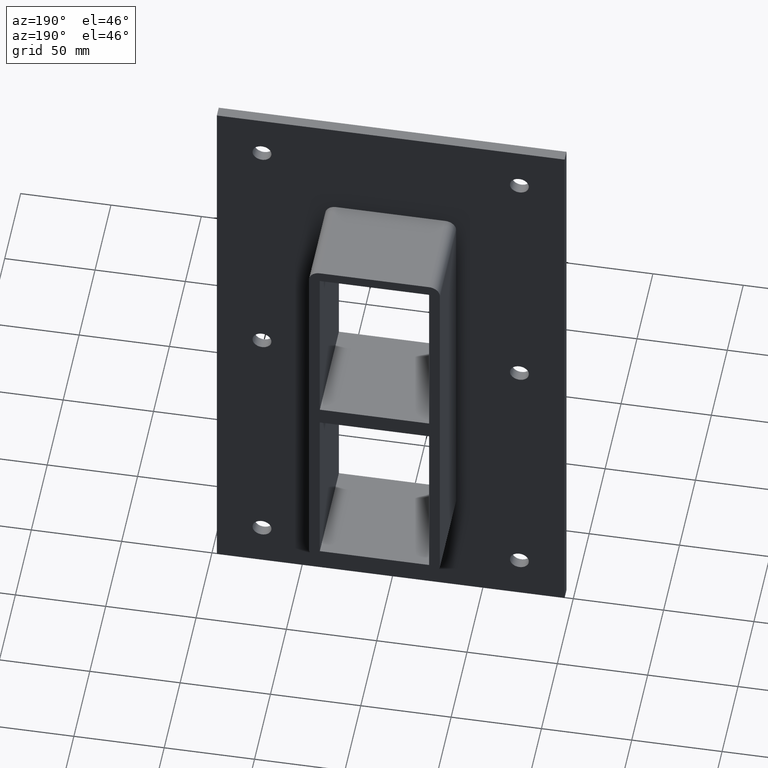
[diagram: clean part render]
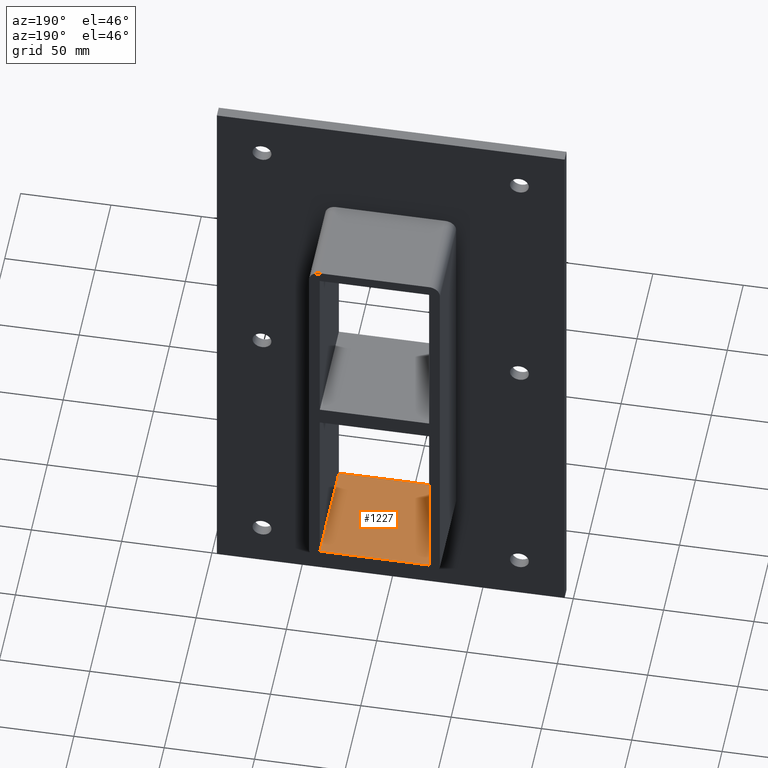
[diagram: same view with one face highlighted and labeled with its STEP entity id]
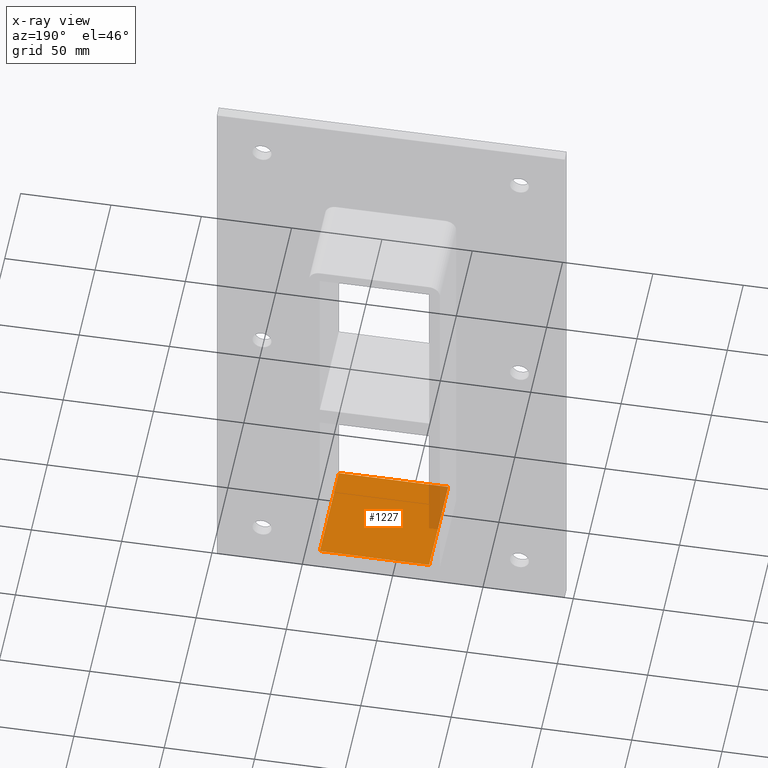
[diagram: x-ray of the same camera — body ghosted, the highlighted face saturated]
A machine part, auxiliary view. The second image highlights one B-rep face of the part: STEP entity #1227.
The next image is the same camera in x-ray: the body ghosted, the highlighted face saturated — about 7% of this face is hidden behind the body in this view.
In plain terms, the highlighted planar face has unit normal (0, 0, -1).
Its self-contained STEP definition (entity closure, byte-faithful):
#353=CARTESIAN_POINT('',(30.249999999999986,57.0,-106.00000000000001));
#354=VERTEX_POINT('',#353);
#361=CARTESIAN_POINT('',(30.249999999999986,-3.0,-106.00000000000001));
#362=VERTEX_POINT('',#361);
#363=CARTESIAN_POINT('',(30.249999999999986,56.999999999999993,-106.00000000000001));
#364=DIRECTION('',(0.0,-1.0,0.0));
#365=VECTOR('',#364,59.999999999999993);
#366=LINE('',#363,#365);
#367=EDGE_CURVE('',#354,#362,#366,.T.);
#739=CARTESIAN_POINT('',(-30.249999999999986,-3.0,-106.00000000000001));
#740=VERTEX_POINT('',#739);
#747=CARTESIAN_POINT('',(-30.249999999999986,57.0,-106.00000000000001));
#748=VERTEX_POINT('',#747);
#749=CARTESIAN_POINT('',(-30.249999999999986,-3.0,-106.00000000000001));
#750=DIRECTION('',(0.0,1.0,0.0));
#751=VECTOR('',#750,60.0);
#752=LINE('',#749,#751);
#753=EDGE_CURVE('',#740,#748,#752,.T.);
#1093=CARTESIAN_POINT('',(30.249999999999986,-3.0,-106.00000000000001));
#1094=DIRECTION('',(-1.0,0.0,0.0));
#1095=VECTOR('',#1094,60.499999999999972);
#1096=LINE('',#1093,#1095);
#1097=EDGE_CURVE('',#362,#740,#1096,.T.);
#1211=CARTESIAN_POINT('',(30.249999999999986,0.0,-106.00000000000001));
#1212=DIRECTION('',(0.0,0.0,-1.0));
#1213=DIRECTION('',(-1.0,0.0,0.0));
#1214=AXIS2_PLACEMENT_3D('',#1211,#1212,#1213);
#1215=PLANE('',#1214);
#1216=ORIENTED_EDGE('',*,*,#753,.F.);
#1217=ORIENTED_EDGE('',*,*,#1097,.F.);
#1218=ORIENTED_EDGE('',*,*,#367,.F.);
#1219=CARTESIAN_POINT('',(-30.249999999999986,57.0,-106.00000000000001));
#1220=DIRECTION('',(1.0,0.0,0.0));
#1221=VECTOR('',#1220,60.499999999999972);
#1222=LINE('',#1219,#1221);
#1223=EDGE_CURVE('',#748,#354,#1222,.T.);
#1224=ORIENTED_EDGE('',*,*,#1223,.F.);
#1225=EDGE_LOOP('',(#1216,#1217,#1218,#1224));
#1226=FACE_OUTER_BOUND('',#1225,.T.);
#1227=ADVANCED_FACE('',(#1226),#1215,.F.);